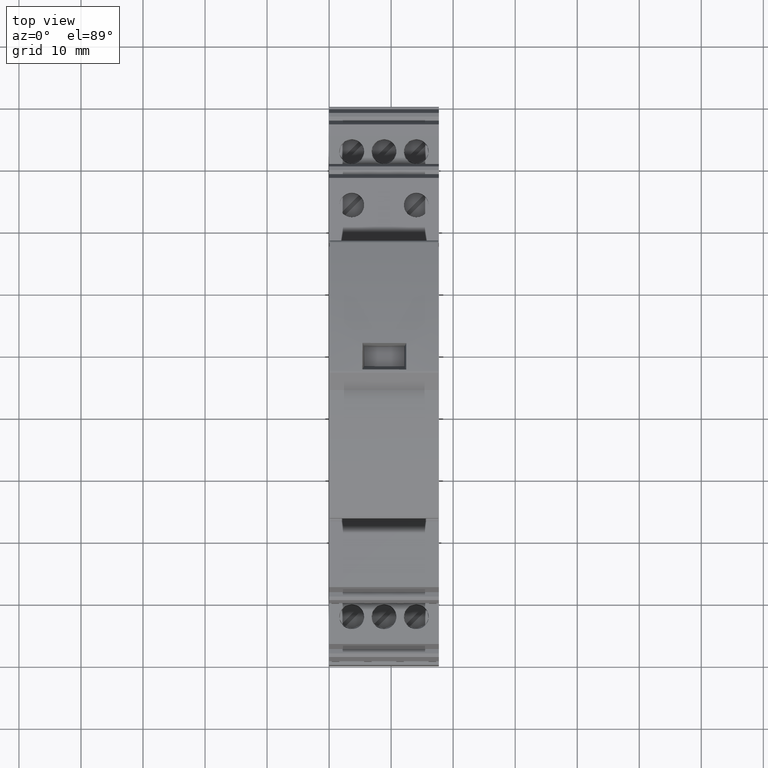
[diagram: clean part render]
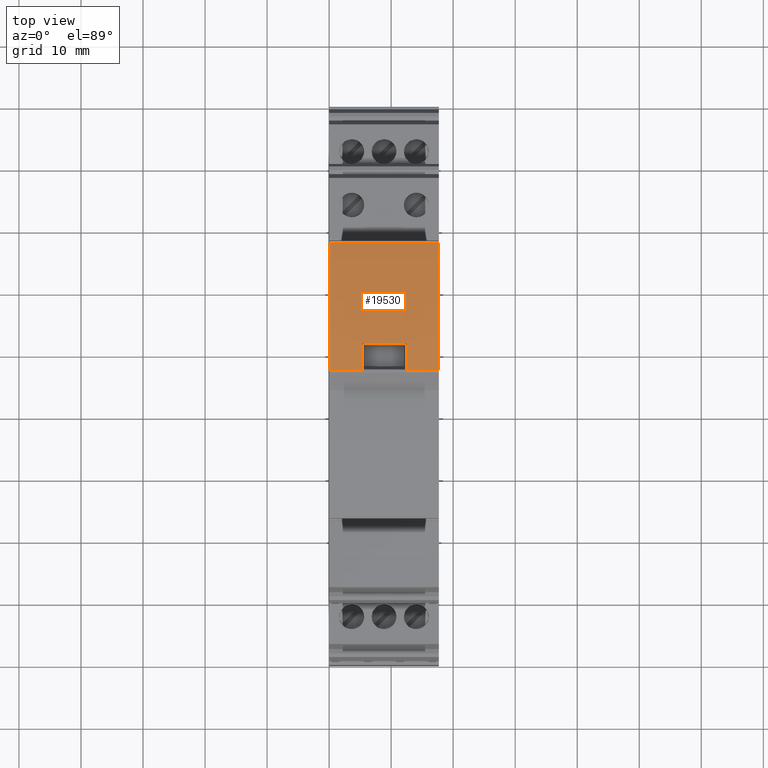
[diagram: same view with one face highlighted and labeled with its STEP entity id]
A machine part, top view. The second image highlights one B-rep face of the part: STEP entity #19530.
In plain terms, the highlighted cylindrical surface (partial cylindrical patch) has radius 71.8 mm, axis along (-1, 0, 0).
Its self-contained STEP definition (entity closure, byte-faithful):
#10=CARTESIAN_POINT('',(102.161765311049,222.285885909949,
67.2700311168798));
#20=DIRECTION('',(-0.984349320503792,0.176228304251306,
-2.10540008167049E-6));
#30=DIRECTION('',(-4.25322269770059E-8,-1.21845730704897E-5,
-0.999999999925767));
#40=AXIS2_PLACEMENT_3D('',#10,#20,#30);
#50=PLANE('',#40);
#60=CARTESIAN_POINT('',(95.9014983865675,151.047051850849,
67.2348928947718));
#70=DIRECTION('',(-0.00349065141521837,-3.87677800230545E-16,
-0.999993907657791));
#80=DIRECTION('',(-0.999969538511651,0.00698126029796205,
0.00349056635050566));
#90=AXIS2_PLACEMENT_3D('',#60,#70,#80);
#100=CYLINDRICAL_SURFACE('',#90,71.8);
#110=CARTESIAN_POINT('',(102.212603410843,222.569877492845,
69.6002710584028));
#120=CARTESIAN_POINT('',(102.212633984341,222.570055275097,
70.1869824937243));
#130=CARTESIAN_POINT('',(102.212664542679,222.570232972664,
70.7736939290365));
#140=CARTESIAN_POINT('',(102.212695085854,222.570410585544,
71.3604053643394));
#150=CARTESIAN_POINT('',(102.21272562903,222.570588198424,
71.9471167996463));
#160=CARTESIAN_POINT('',(102.212756157044,222.570765726617,
72.5338282349376));
#170=CARTESIAN_POINT('',(102.212786669897,222.570943170121,
73.1205396702229));
#180=CARTESIAN_POINT('',(102.212817182749,222.571120613626,
73.7072511055082));
#190=CARTESIAN_POINT('',(102.21284768044,222.571297972442,
74.2939625407819));
#200=CARTESIAN_POINT('',(102.212878162968,222.571475246567,
74.8806739760516));
#210=CARTESIAN_POINT('',(102.212908645497,222.571652520692,
75.4673854113177));
#220=CARTESIAN_POINT('',(102.212939112863,222.571829710127,
76.0540968465754));
#230=CARTESIAN_POINT('',(102.212969565067,222.572006814869,
76.6408082818232));
#240=B_SPLINE_CURVE_WITH_KNOTS('',3,(#110,#120,#130,#140,#150,#160,#170,
#180,#190,#200,#210,#220,#230),.UNSPECIFIED.,.F.,.F.,(4,3,3,3,4),(0.,
1.76013438905301,3.5202687778944,5.2804031665225,7.04053755493529),
.UNSPECIFIED.);
#250=SURFACE_CURVE('',#240,(#100,#50),.CURVE_3D.);
#260=CARTESIAN_POINT('',(102.212603410843,222.569877492845,
69.6002710584024));
#270=VERTEX_POINT('',#260);
#280=CARTESIAN_POINT('',(102.212969565067,222.572006814869,
76.6408082818223));
#290=VERTEX_POINT('',#280);
#300=EDGE_CURVE('',#270,#290,#250,.T.);
#4970=CARTESIAN_POINT('',(118.421301186639,219.220626375992,
64.2562663952502));
#4980=VERTEX_POINT('',#4970);
#5010=CARTESIAN_POINT('',(95.8913754989601,151.047051850849,
64.3349109913666));
#5020=DIRECTION('',(-0.00349065141521837,-3.87677800230545E-16,
-0.999993907657791));
#5030=DIRECTION('',(-0.999969538511651,0.00698126029796205,
0.00349056635050566));
#5040=AXIS2_PLACEMENT_3D('',#5010,#5020,#5030);
#5050=CIRCLE('',#5040,71.8);
#5060=CARTESIAN_POINT('',(97.6829108946451,222.824697129987,
64.3286573277027));
#5070=VERTEX_POINT('',#5060);
#5080=EDGE_CURVE('',#5070,#4980,#5050,.T.);
#7010=CARTESIAN_POINT('',(95.9321057079575,151.047051850849,
76.0032089707611));
#7020=DIRECTION('',(-0.000302487094566286,0.0891927531884081,
0.996014337888883));
#7030=DIRECTION('',(0.0424757761868098,-0.995114331385347,
0.0891250576932283));
#7040=AXIS2_PLACEMENT_3D('',#7010,#7020,#7030);
#7050=ELLIPSE('',#7040,72.087831287016,71.8);
#7060=CARTESIAN_POINT('',(97.9527176901342,222.817979248864,
69.5767599117711));
#7070=VERTEX_POINT('',#7060);
#7080=EDGE_CURVE('',#270,#7070,#7050,.T.);
#11210=CARTESIAN_POINT('',(98.5076571502678,219.574762395282,
30.7203322471004));
#11220=DIRECTION('',(0.985670696022969,0.168680997735957,
-2.09722871243961E-6));
#11230=DIRECTION('',(-0.168680997748989,0.985670695949889,
-1.20028022406499E-5));
#11240=AXIS2_PLACEMENT_3D('',#11210,#11220,#11230);
#11250=PLANE('',#11240);
#11320=CARTESIAN_POINT('',(97.9526124686992,222.818682223931,
76.6646138218148));
#11330=VERTEX_POINT('',#11320);
#11360=CARTESIAN_POINT('',(97.9526124686992,222.818682223931,
76.6646138218142));
#11370=CARTESIAN_POINT('',(97.9526211754725,222.818624003094,
76.0739593291521));
#11380=CARTESIAN_POINT('',(97.9526298976647,222.818565692158,
75.4833048365248));
#11390=CARTESIAN_POINT('',(97.9526386352765,222.81850729112,
74.8926503439408));
#11400=CARTESIAN_POINT('',(97.9526473728883,222.818448890081,
74.3019958513595));
#11410=CARTESIAN_POINT('',(97.9526561259197,222.81839039894,
73.7113413588122));
#11420=CARTESIAN_POINT('',(97.9526648943716,222.81833181769,
73.120686866309));
#11430=CARTESIAN_POINT('',(97.9526736628234,222.818273236441,
72.5300323738053));
#11440=CARTESIAN_POINT('',(97.9526824466957,222.818214565084,
71.9393778813393));
#11450=CARTESIAN_POINT('',(97.9526912459892,222.818155803614,
71.3487233889193));
#11460=CARTESIAN_POINT('',(97.9527000452827,222.818097042145,
70.7580688964967));
#11470=CARTESIAN_POINT('',(97.9527088599974,222.818038190563,
70.1674144041107));
#11480=CARTESIAN_POINT('',(97.9527176901342,222.817979248864,
69.5767599117716));
#11490=B_SPLINE_CURVE_WITH_KNOTS('',3,(#11360,#11370,#11380,#11390,
#11400,#11410,#11420,#11430,#11440,#11450,#11460,#11470,#11480),
.UNSPECIFIED.,.F.,.F.,(4,3,3,3,4),(0.,1.7719634867015,3.54392697321617,
5.31589045954387,7.08785394568458),.UNSPECIFIED.);
#11500=SURFACE_CURVE('',#11490,(#100,#11250),.CURVE_3D.);
#11510=EDGE_CURVE('',#11330,#7070,#11500,.T.);
#16040=CARTESIAN_POINT('',(97.7439972944114,222.824697129987,
81.8285507117141));
#16050=VERTEX_POINT('',#16040);
#16080=CARTESIAN_POINT('',(95.9524618987265,151.047051850849,
81.8348043753779));
#16090=DIRECTION('',(-0.00349065141521837,-3.87677800230545E-16,
-0.999993907657791));
#16100=DIRECTION('',(-0.999969538511651,0.00698126029796205,
0.00349056635050566));
#16110=AXIS2_PLACEMENT_3D('',#16080,#16090,#16100);
#16120=CIRCLE('',#16110,71.8);
#16130=CARTESIAN_POINT('',(118.482387586405,219.220626375992,
81.7561597792615));
#16140=VERTEX_POINT('',#16130);
#16150=EDGE_CURVE('',#16050,#16140,#16120,.T.);
#17500=CARTESIAN_POINT('',(95.911980552233,151.047051850849,
70.2377999621788));
#17510=DIRECTION('',(-0.000400730723765881,0.0891997604886482,
-0.996013675681039));
#17520=DIRECTION('',(-0.0346377999124449,-0.995417317076438,
-0.0891324165585776));
#17530=AXIS2_PLACEMENT_3D('',#17500,#17510,#17520);
#17540=ELLIPSE('',#17530,72.0877015529305,71.8);
#17550=EDGE_CURVE('',#11330,#290,#17540,.T.);
#19060=CARTESIAN_POINT('',(118.431424074246,219.220626375992,
67.1562482986555));
#19070=DIRECTION('',(-0.00349065141521837,-3.87677800230545E-16,
-0.999993907657791));
#19080=VECTOR('',#19070,1.);
#19090=LINE('',#19060,#19080);
#19100=EDGE_CURVE('',#16140,#4980,#19090,.T.);
#19360=ORIENTED_EDGE('',*,*,#17550,.F.);
#19370=ORIENTED_EDGE('',*,*,#300,.T.);
#19380=ORIENTED_EDGE('',*,*,#7080,.F.);
#19390=ORIENTED_EDGE('',*,*,#11510,.T.);
#19400=EDGE_LOOP('',(#19390,#19380,#19370,#19360));
#19410=FACE_BOUND('',#19400,.T.);
#19420=ORIENTED_EDGE('',*,*,#5080,.F.);
#19430=ORIENTED_EDGE('',*,*,#19100,.T.);
#19440=ORIENTED_EDGE('',*,*,#16150,.T.);
#19450=CARTESIAN_POINT('',(97.6930337822524,222.824697129987,
67.2286392311079));
#19460=DIRECTION('',(0.00349065141521837,3.87677800230545E-16,
0.999993907657791));
#19470=VECTOR('',#19460,1.);
#19480=LINE('',#19450,#19470);
#19490=EDGE_CURVE('',#5070,#16050,#19480,.T.);
#19500=ORIENTED_EDGE('',*,*,#19490,.T.);
#19510=EDGE_LOOP('',(#19500,#19440,#19430,#19420));
#19520=FACE_OUTER_BOUND('',#19510,.T.);
#19530=ADVANCED_FACE('',(#19410,#19520),#100,.T.);